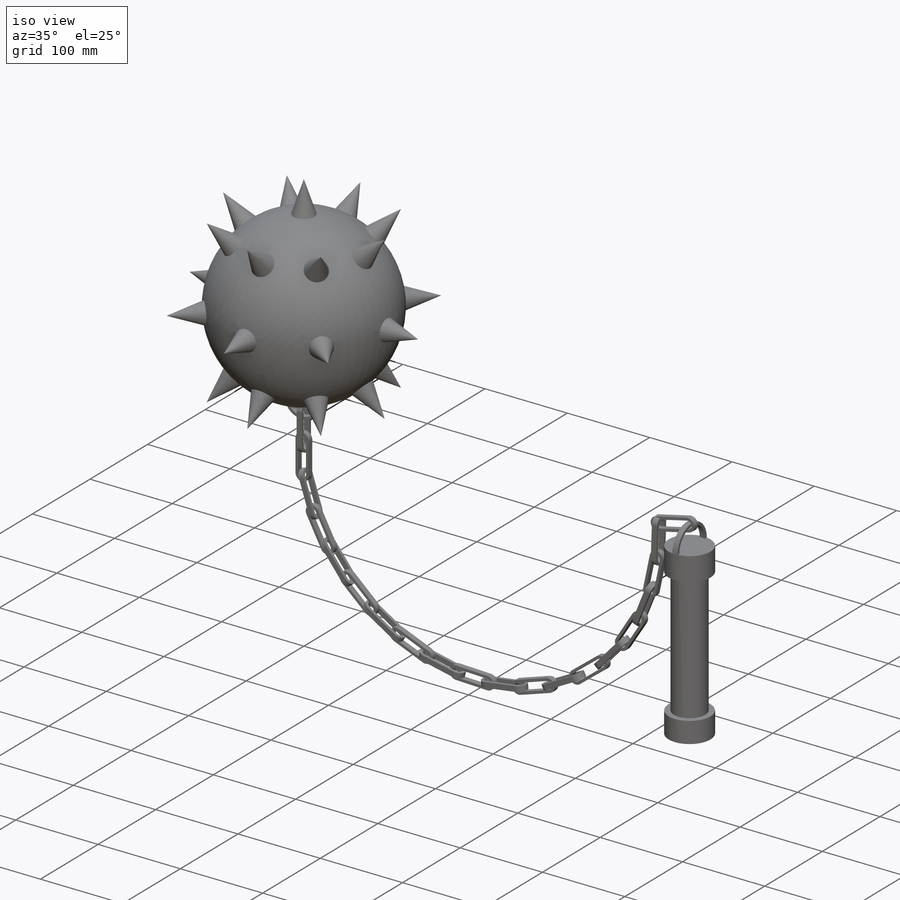
[diagram: iso view]
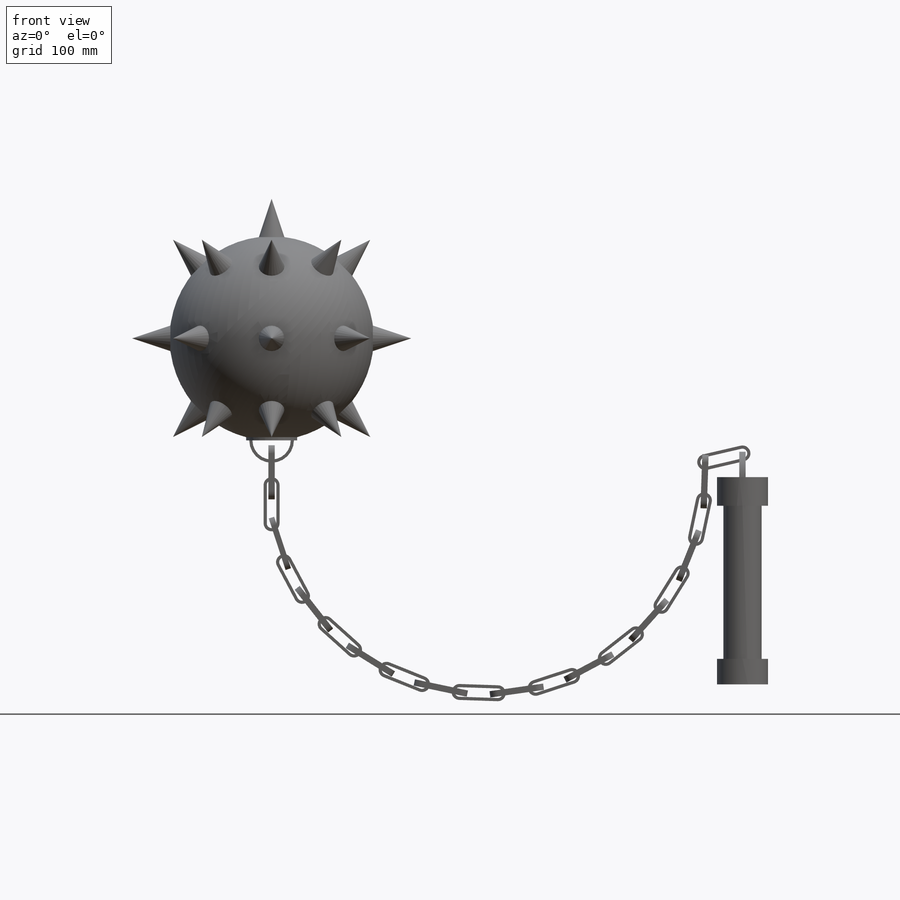
[diagram: front view]
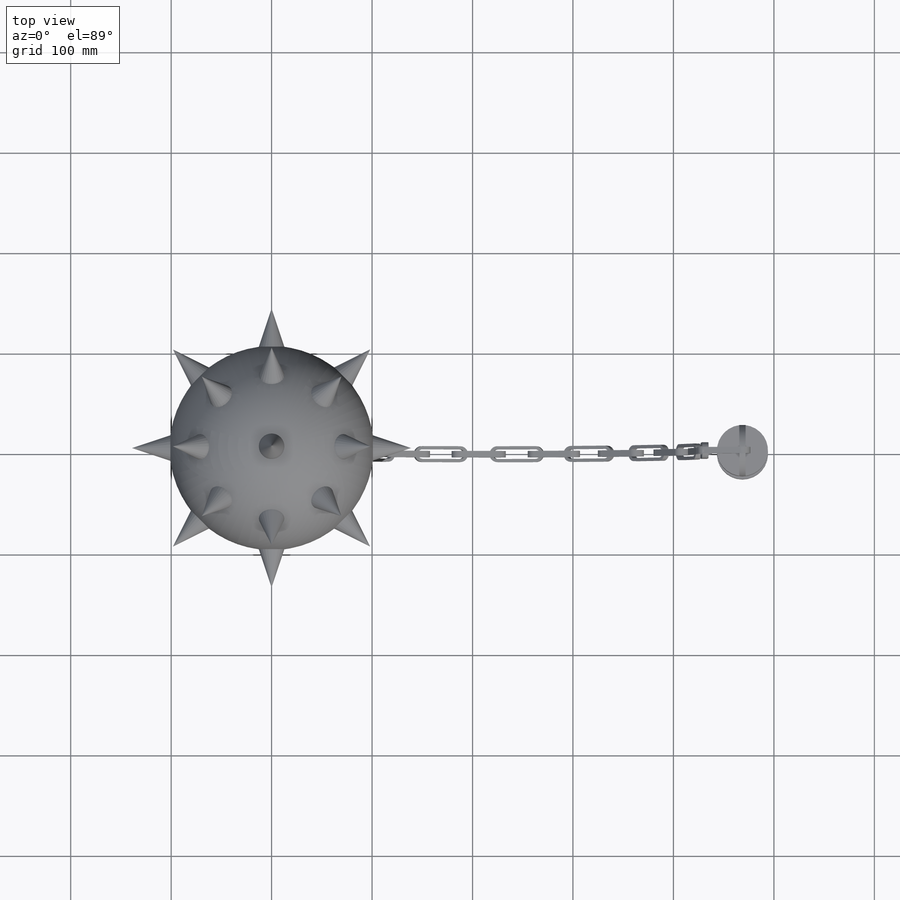
[diagram: top view]
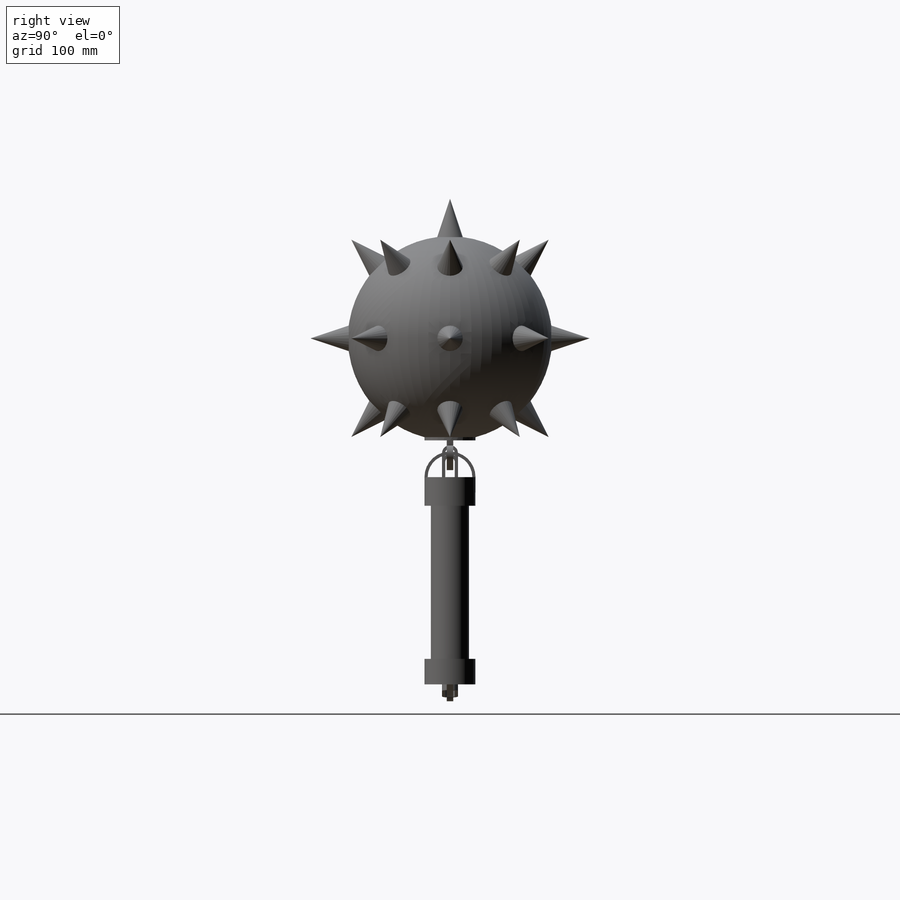
[diagram: right view]
SOLIDWORKS PART (.sldprt)
format: sldprt  version: not decoded by parser v0  size: 888,832 bytes
history: native  units: mm
features: sketch x30, extrude x23, plane x14, revolve x4, mirror x2, material x1, pattern_circular x1 (+12 scaffold rows collapsed)
feature tree (87):
  scaffold x12  (default folders/planes/origin — collapsed)
  material  "Material <not specified>"
  sketch  "Sketch1"  dims[D1=~45.684217mm]
  revolve  "Revolve1"  Angle=360deg
  plane  "Plane1"  Offset=139.7mm
  sketch  "Sketch6"  dims[c1.D1=25.4mm c1.D2=38.1mm c2.D1=25.4mm c2.D2=38.1mm]
  revolve  "Revolve2"  Angle=360deg
  sketch  "Sketch14"  dims[c1.D1=~71.680579mm c2.D1=45.0deg c2.D2=~55.410547mm c3.D2=45.0deg c3.D3=~51.071186mm c4.D3=45.0deg c4.D4=~51.071186mm c5.D4=45.0deg c6.D4=~71.630333mm c7.D4=~22.386091deg c8.D4=~71.680579mm c8.D1=~66.123171mm c9.D1=22.5deg c9.D2=~58.504906mm c10.D2=45.0deg c10.D3=~45.36536mm c11.D3=45.0deg c11.D4=~54.409345mm c12.D4=45.0deg c13.D4=~55.521633mm c14.D4=45.0deg]
  plane  "Plane2"
  mirror  "Mirror1"
  plane  "Plane3"
  mirror  "Mirror2"
  sketch  "Sketch15"
  pattern_circular  "CirPattern2"  Count=8 Angle=360deg
  sketch  "Sketch16"  dims[D1=50.8mm]
  revolve  "Revolve3"  Angle=360deg
  sketch  "Sketch17"  dims[c1.D1=6.35mm c1.D2=6.35mm c1.D3=3.175mm c1.D4=3.175mm c2.D3=~164.134352deg]
  extrude  "Boss-Extrude1"  Depth=3.175mm
  sketch  "Sketch18"  dims[D1=15.875mm D2=38.1mm D3=12.7mm D4=3.175mm]
  extrude  "Boss-Extrude2"  Depth=3.175mm
  sketch  "Sketch19"  dims[D1=15.875mm D2=38.1mm D3=6.35mm D4=3.175mm]
  extrude  "Boss-Extrude3"  Depth=3.175mm
  sketch  "Sketch20"  dims[c1.D1=53.975mm c1.D2=28.575mm c1.D3=38.1mm c1.D4=38.1mm c1.D5=38.1mm c1.D6=38.1mm c1.D7=28.575mm c1.D8=28.575mm c1.D9=28.575mm c1.D10=28.575mm c1.D11=53.975mm c2.D11=170.0deg c2.D12=28.575mm c3.D12=170.0deg c3.D13=28.575mm c4.D13=170.0deg c4.D14=28.575mm c5.D14=170.0deg c5.D15=28.575mm c6.D15=170.0deg c6.D16=28.575mm c7.D16=170.0deg c8.D16=~22.487672mm c8.D7=38.1mm c8.D8=38.1mm c8.D9=38.1mm c8.D10=38.1mm c9.D16=38.1mm c9.D17=38.1mm c9.D18=28.575mm c10.D18=170.0deg c10.D19=28.575mm c11.D19=170.0deg c11.D20=28.575mm c12.D20=170.0deg c12.D21=28.575mm c13.D21=170.0deg c13.D22=28.575mm c14.D22=170.0deg c14.D23=~13.457729mm c15.D23=170.0deg c15.D24=38.1mm c15.D25=38.1mm c15.D26=38.1mm c15.D27=38.1mm c15.D28=38.1mm c15.D29=38.1mm c15.D30=28.575mm c15.D31=28.575mm c15.D32=28.575mm c16.D32=170.0deg c16.D33=28.575mm c17.D33=170.0deg c17.D34=28.575mm c18.D34=170.0deg c18.D35=28.575mm c19.D35=170.0deg c19.D36=28.575mm c20.D36=170.0deg c20.D37=28.575mm c21.D37=170.0deg c22.D37=28.575mm c22.D30=~0.949036mm c23.D30=105.0deg]
  plane  "Plane4"
  sketch  "Sketch23"  dims[D1=15.875mm D2=38.1mm D3=1.5875mm D4=3.175mm]
  extrude  "Boss-Extrude4"  Depth=3.175mm
  sketch  "Sketch24"  dims[D1=15.875mm D2=38.1mm D4=6.35mm D5=4.7625mm D3=3.175mm]
  extrude  "Boss-Extrude5"  Depth=3.175mm
  plane  "Plane5"
  sketch  "Sketch25"  dims[D1=15.875mm D2=38.1mm D3=3.175mm]
  extrude  "Boss-Extrude6"  Depth=3.175mm
  sketch  "Sketch26"  dims[D1=15.875mm D2=38.1mm D3=3.175mm]
  extrude  "Boss-Extrude7"  Depth=3.175mm
  plane  "Plane6"
  sketch  "Sketch27"  dims[D1=15.875mm D2=38.1mm D3=3.175mm]
  extrude  "Boss-Extrude8"  Depth=3.175mm
  sketch  "Sketch28"  dims[D1=15.875mm D2=38.1mm D3=3.175mm]
  extrude  "Boss-Extrude9"  Depth=3.175mm
  plane  "Plane7"
  plane  "Plane8"
  plane  "Plane9"
  sketch  "Sketch29"  dims[D1=15.875mm D2=38.1mm D3=3.175mm]
  extrude  "Boss-Extrude10"  Depth=3.175mm
  sketch  "Sketch30"  dims[D1=15.875mm D2=38.1mm D3=3.175mm]
  extrude  "Boss-Extrude11"  Depth=3.175mm
  sketch  "Sketch31"  dims[D1=15.875mm D2=38.1mm D3=3.175mm]
  extrude  "Boss-Extrude12"  Depth=3.175mm
  sketch  "Sketch33"  dims[D1=15.875mm D2=38.1mm D3=3.175mm]
  extrude  "Boss-Extrude13"  Depth=3.175mm
  sketch  "Sketch34"  dims[D1=15.875mm D2=38.1mm D3=3.175mm]
  extrude  "Boss-Extrude14"  Depth=3.175mm
  sketch  "Sketch35"  dims[D1=15.875mm D2=38.1mm D3=3.175mm]
  extrude  "Boss-Extrude15"  Depth=3.175mm
  plane  "Plane10"
  plane  "Plane11"
  plane  "Plane12"
  sketch  "Sketch36"  dims[D1=15.875mm D2=38.1mm D3=3.175mm]
  extrude  "Boss-Extrude16"  Depth=3.175mm
  sketch  "Sketch37"  dims[D1=15.875mm D2=38.1mm D3=3.175mm]
  extrude  "Boss-Extrude17"  Depth=3.175mm
  sketch  "Sketch38"  dims[D1=15.875mm D2=38.1mm D3=3.175mm]
  extrude  "Boss-Extrude18"  Depth=3.175mm
  sketch  "Sketch39"  dims[D1=15.875mm D2=38.1mm D3=3.175mm]
  extrude  "Boss-Extrude19"  Depth=3.175mm
  sketch  "Sketch40"  dims[D1=15.875mm D2=38.1mm D3=3.175mm]
  extrude  "Boss-Extrude20"  Depth=3.175mm
  sketch  "Sketch41"  dims[D1=15.875mm D2=38.1mm D3=3.175mm]
  extrude  "Boss-Extrude21"  Depth=3.175mm
  plane  "Plane13"  Offset=138.1125mm
  sketch  "Sketch42"  dims[D1=19.05mm]
  extrude  "Boss-Extrude22"  Depth=3.175mm
  plane  "Plane14"
  sketch  "Sketch44"  dims[D1=3.175mm]
  extrude  "Boss-Extrude23"  Depth=3.175mm
  sketch  "Sketch45"  dims[D1=203.2mm D2=6.35mm D3=6.35mm D4=25.4mm D5=25.4mm]
  revolve  "Revolve4"  Angle=360deg
decode coverage: 57 of 60 modeling features carry decoded parameters
note: ~ marks probable driven/reference dimensions
note: suppression state not decoded; provenance and decode notes live in map.json
